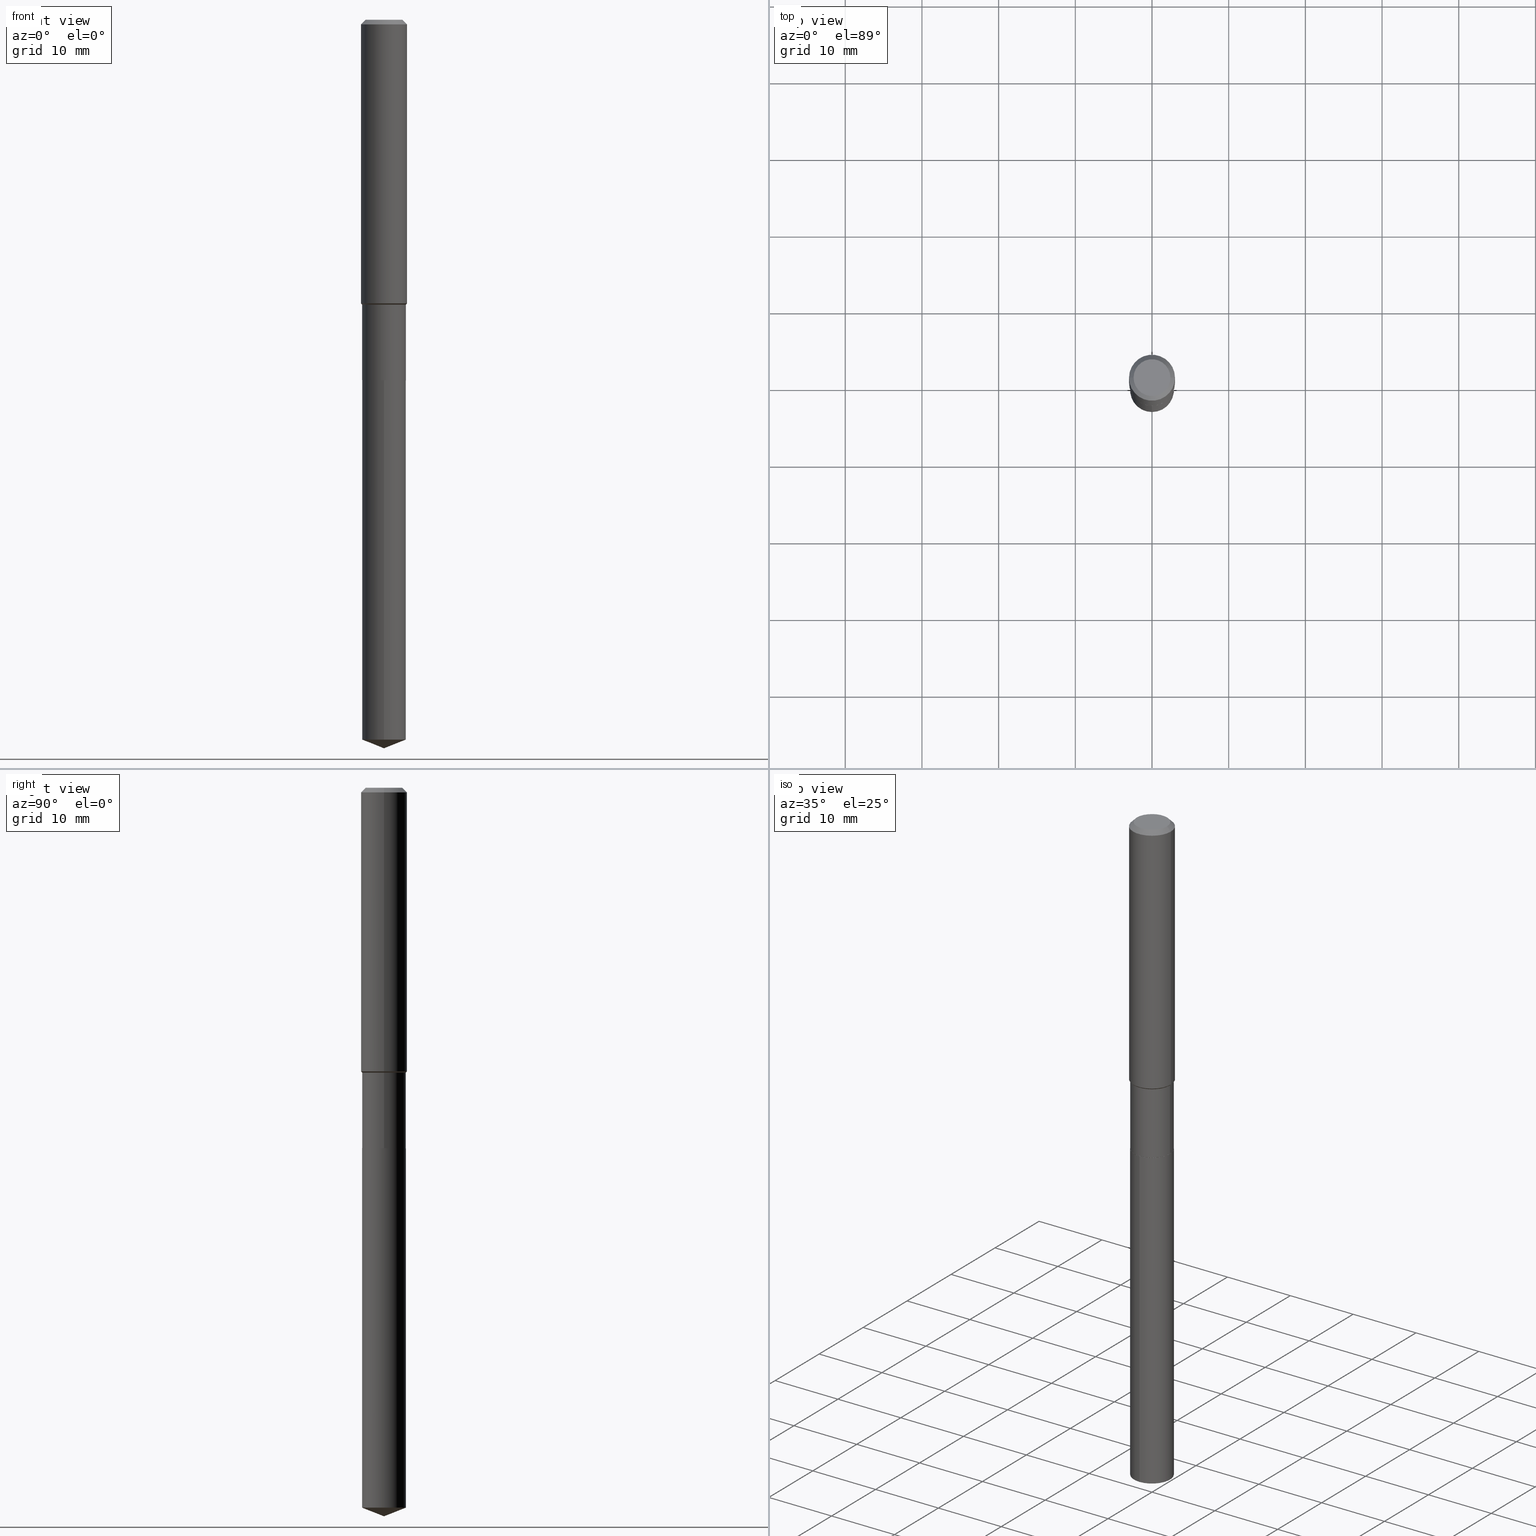
[diagram: canonical four-view strip — front | top / right | iso, engineering-drawing reading convention]
A machine part, canonical four-view strip (front | top / right | iso — engineering-drawing reading convention). The complete STEP part file that produces these views, byte-faithful:
ISO-10303-21;
HEADER;
FILE_DESCRIPTION (( 'STEP AP203' ),
    '1' );
FILE_NAME ('66633.STEP',
    '2024-04-25T02:29:24',
    ( '' ),
    ( '' ),
    'SwSTEP 2.0',
    'SolidWorks 2023',
    '' );
FILE_SCHEMA (( 'CONFIG_CONTROL_DESIGN' ));
ENDSEC;

DATA;
#1 = DIRECTION ( 'NONE',  ( -2.445468806185136597E-29, 3.491481338843145583E-15, 1.000000000000000000 ) ) ;
#2 = CARTESIAN_POINT ( 'NONE',  ( 4.525095478964977394E-29, -6.460637069395357576E-15, -1.850400000000000267 ) ) ;
#3 = EDGE_CURVE ( 'NONE', #206, #323, #258, .T. ) ;
#4 = VERTEX_POINT ( 'NONE', #250 ) ;
#5 = AXIS2_PLACEMENT_3D ( 'NONE', #226, #234, #44 ) ;
#6 = AXIS2_PLACEMENT_3D ( 'NONE', #460, #45, #273 ) ;
#7 = CARTESIAN_POINT ( 'NONE',  ( 3.576253582165144497E-29, -5.105942309924217164E-15, -1.462400000000000144 ) ) ;
#8 = ORIENTED_EDGE ( 'NONE', *, *, #195, .T. ) ;
#9 = DIRECTION ( 'NONE',  ( -2.445480539169629745E-29, 3.491464536541551464E-15, 1.000000000000000000 ) ) ;
#10 = DIRECTION ( 'NONE',  ( -1.000000000000000000, 6.982962677686266711E-15, 0.000000000000000000 ) ) ;
#11 = ORIENTED_EDGE ( 'NONE', *, *, #221, .T. ) ;
#12 = CIRCLE ( 'NONE', #303, 0.09447999999999998066 ) ;
#13 = CC_DESIGN_APPROVAL ( #188, ( #345 ) ) ;
#14 = CC_DESIGN_PERSON_AND_ORGANIZATION_ASSIGNMENT ( #249, #402, ( #345 ) ) ;
#15 = DIRECTION ( 'NONE',  ( -2.445468806185136597E-29, 3.491481338843145583E-15, 1.000000000000000000 ) ) ;
#16 = ORIENTED_EDGE ( 'NONE', *, *, #324, .F. ) ;
#17 = CARTESIAN_POINT ( 'NONE',  ( 9.146542891173238393E-29, -1.305883784153045268E-14, -3.740200000000000191 ) ) ;
#18 = ADVANCED_FACE ( 'NONE', ( #373 ), #50, .T. ) ;
#19 = EDGE_LOOP ( 'NONE', ( #38, #200 ) ) ;
#20 = DIRECTION ( 'NONE',  ( 2.445468806185136597E-29, -3.491481338843145583E-15, -1.000000000000000000 ) ) ;
#21 = EDGE_LOOP ( 'NONE', ( #321, #8, #128, #427 ) ) ;
#22 = CONICAL_SURFACE ( 'NONE', #296, 0.1121999999999999525, 0.7853981633974613796 ) ;
#23 = PERSON_AND_ORGANIZATION ( #166, #59 ) ;
#24 = EDGE_LOOP ( 'NONE', ( #361, #204, #46 ) ) ;
#25 = PRODUCT ( '66633', '66633', '', ( #66 ) ) ;
#26 = FACE_OUTER_BOUND ( 'NONE', #430, .T. ) ;
#27 = APPROVAL_ROLE ( '' ) ;
#28 = PLANE ( 'NONE',  #424 ) ;
#29 = DATE_AND_TIME ( #60, #162 ) ;
#30 = VECTOR ( 'NONE', #452, 39.37007874015748143 ) ;
#31 = AXIS2_PLACEMENT_3D ( 'NONE', #358, #52, #57 ) ;
#32 = LINE ( 'NONE', #374, #233 ) ;
#33 =( NAMED_UNIT ( * ) SI_UNIT ( $, .STERADIAN. ) SOLID_ANGLE_UNIT ( ) );
#34 = CARTESIAN_POINT ( 'NONE',  ( 3.576253582165144497E-29, -5.105942309924217164E-15, -1.462400000000000144 ) ) ;
#35 = CARTESIAN_POINT ( 'NONE',  ( 3.576253582165144497E-29, -5.105942309924217164E-15, -1.462400000000000144 ) ) ;
#36 = DIRECTION ( 'NONE',  ( -0.7071067811865459074, 2.468850131082240100E-15, -0.7071067811865491270 ) ) ;
#37 =( GEOMETRIC_REPRESENTATION_CONTEXT ( 3 ) GLOBAL_UNCERTAINTY_ASSIGNED_CONTEXT ( ( #297 ) ) GLOBAL_UNIT_ASSIGNED_CONTEXT ( ( #238, #218, #33 ) ) REPRESENTATION_CONTEXT ( 'NONE', 'WORKASPACE' ) );
#38 = ORIENTED_EDGE ( 'NONE', *, *, #366, .T. ) ;
#39 = CYLINDRICAL_SURFACE ( 'NONE', #91, 0.1122000000000000081 ) ;
#40 = CARTESIAN_POINT ( 'NONE',  ( 0.1180999999999999966, -9.071566814582237199E-16, -0.02362000000000014088 ) ) ;
#41 = ORIENTED_EDGE ( 'NONE', *, *, #213, .F. ) ;
#42 = DIRECTION ( 'NONE',  ( -2.445480539169629745E-29, 3.491464536541551464E-15, 1.000000000000000000 ) ) ;
#43 = VECTOR ( 'NONE', #114, 39.37007874015748143 ) ;
#44 = DIRECTION ( 'NONE',  ( 1.000000000000000000, -6.982962677686266711E-15, 0.000000000000000000 ) ) ;
#45 = DIRECTION ( 'NONE',  ( -2.445468806185136597E-29, 3.491481338843145583E-15, 1.000000000000000000 ) ) ;
#46 = ORIENTED_EDGE ( 'NONE', *, *, #136, .F. ) ;
#47 = CC_DESIGN_DATE_AND_TIME_ASSIGNMENT ( #62, #141, ( #230 ) ) ;
#48 = LINE ( 'NONE', #17, #320 ) ;
#49 = ORIENTED_EDGE ( 'NONE', *, *, #227, .F. ) ;
#50 = CONICAL_SURFACE ( 'NONE', #129, 0.1121999999999999525, 0.7853981633974613796 ) ;
#51 = EDGE_CURVE ( 'NONE', #124, #132, #293, .T. ) ;
#52 = DIRECTION ( 'NONE',  ( -2.438088387897960049E-29, 3.491481338843145188E-15, 1.000000000000000000 ) ) ;
#53 = ORIENTED_EDGE ( 'NONE', *, *, #133, .T. ) ;
#54 = EDGE_CURVE ( 'NONE', #90, #280, #32, .T. ) ;
#55 = CARTESIAN_POINT ( 'NONE',  ( 4.523872744561885153E-29, -6.458891328725936072E-15, -1.849900000000000322 ) ) ;
#56 = ORIENTED_EDGE ( 'NONE', *, *, #340, .T. ) ;
#57 = DIRECTION ( 'NONE',  ( 1.000000000000000000, -6.982962677686265922E-15, 4.876176775795935793E-29 ) ) ;
#58 = ORIENTED_EDGE ( 'NONE', *, *, #324, .T. ) ;
#59 = ORGANIZATION ( 'UNSPECIFIED', 'UNSPECIFIED', '' ) ;
#60 = CALENDAR_DATE ( 2024, 24, 4 ) ;
#61 = DIRECTION ( 'NONE',  ( -2.445468806185136597E-29, 3.491481338843145583E-15, 1.000000000000000000 ) ) ;
#62 = DATE_AND_TIME ( #474, #487 ) ;
#63 = CARTESIAN_POINT ( 'NONE',  ( 4.525095478964977954E-29, -6.460637069395358365E-15, -1.850400000000000489 ) ) ;
#64 = PERSON_AND_ORGANIZATION_ROLE ( 'design_supplier' ) ;
#65 = CARTESIAN_POINT ( 'NONE',  ( 2.358133508849003952E-46, -3.366789680499277518E-32, -9.642868896486260050E-18 ) ) ;
#66 = MECHANICAL_CONTEXT ( 'NONE', #327, 'mechanical' ) ;
#67 = AXIS2_PLACEMENT_3D ( 'NONE', #410, #183, #447 ) ;
#68 = CIRCLE ( 'NONE', #6, 0.1116999999999999937 ) ;
#69 = DIRECTION ( 'NONE',  ( -2.445468806185136597E-29, 3.491481338843145583E-15, 1.000000000000000000 ) ) ;
#70 = CARTESIAN_POINT ( 'NONE',  ( -7.834884124363086789E-16, -0.1122000000000129144, -3.696003244636003160 ) ) ;
#71 = FACE_OUTER_BOUND ( 'NONE', #275, .T. ) ;
#72 = ORIENTED_EDGE ( 'NONE', *, *, #284, .F. ) ;
#73 = EDGE_CURVE ( 'NONE', #323, #401, #443, .T. ) ;
#74 = DIRECTION ( 'NONE',  ( 1.000000000000000000, -6.982962677686270655E-15, 0.000000000000000000 ) ) ;
#75 = CONICAL_SURFACE ( 'NONE', #469, 0.1116999999999999937, 0.7853981633972775267 ) ;
#76 = AXIS2_PLACEMENT_3D ( 'NONE', #127, #464, #241 ) ;
#77 = ORIENTED_EDGE ( 'NONE', *, *, #133, .F. ) ;
#78 = DIRECTION ( 'NONE',  ( -6.982962677686265133E-15, -1.000000000000000000, 2.434802133390608632E-15 ) ) ;
#79 = ORIENTED_EDGE ( 'NONE', *, *, #335, .F. ) ;
#80 = DIRECTION ( 'NONE',  ( -2.445468806185136877E-29, 3.491481338843145188E-15, 1.000000000000000000 ) ) ;
#81 = ADVANCED_FACE ( 'NONE', ( #210 ), #28, .F. ) ;
#82 = CARTESIAN_POINT ( 'NONE',  ( 0.1181000000000000799, -8.246878922347486570E-16, 5.758764772215004644E-30 ) ) ;
#83 = CONICAL_SURFACE ( 'NONE', #352, 0.1116999999999999937, 0.7853981633972775267 ) ;
#84 = CIRCLE ( 'NONE', #130, 0.1180999999999999966 ) ;
#85 = ADVANCED_FACE ( 'NONE', ( #182 ), #139, .T. ) ;
#86 = ORIENTED_EDGE ( 'NONE', *, *, #428, .T. ) ;
#87 = LENGTH_MEASURE_WITH_UNIT ( LENGTH_MEASURE( 0.02539999999999999897 ), #123 );
#88 = ORIENTED_EDGE ( 'NONE', *, *, #136, .T. ) ;
#89 = CARTESIAN_POINT ( 'NONE',  ( 5.776197320209327532E-31, -8.246878922347559293E-17, -0.02362000000000014088 ) ) ;
#90 = VERTEX_POINT ( 'NONE', #70 ) ;
#91 = AXIS2_PLACEMENT_3D ( 'NONE', #2, #191, #78 ) ;
#92 = PRODUCT_DEFINITION_FORMATION_WITH_SPECIFIED_SOURCE ( 'ANY', '', #25, .NOT_KNOWN. ) ;
#93 = FACE_OUTER_BOUND ( 'NONE', #24, .T. ) ;
#94 = ORIENTED_EDGE ( 'NONE', *, *, #184, .F. ) ;
#95 = DIRECTION ( 'NONE',  ( -0.7071067811864267805, 7.493145998869918709E-15, 0.7071067811866682540 ) ) ;
#96 = ORIENTED_EDGE ( 'NONE', *, *, #54, .T. ) ;
#97 = APPROVAL_DATE_TIME ( #437, #174 ) ;
#98 = ADVANCED_FACE ( 'NONE', ( #112 ), #22, .T. ) ;
#99 = DIRECTION ( 'NONE',  ( 1.000000000000000000, -6.982962677686270655E-15, 0.000000000000000000 ) ) ;
#100 = MANIFOLD_SOLID_BREP ( 'Body-Move/Copy2[1]', #468 ) ;
#101 = LOCAL_TIME ( 22, 29, 24.00000000000000000, #257 ) ;
#102 = DATE_TIME_ROLE ( 'classification_date' ) ;
#103 = DIRECTION ( 'NONE',  ( -2.445468806185136877E-29, 3.491481338843145188E-15, 1.000000000000000000 ) ) ;
#104 = EDGE_CURVE ( 'NONE', #323, #426, #199, .T. ) ;
#105 = DIRECTION ( 'NONE',  ( -6.982962677686265133E-15, -1.000000000000000000, 4.869604266781217263E-15 ) ) ;
#106 = APPROVAL_DATE_TIME ( #144, #240 ) ;
#107 = DIRECTION ( 'NONE',  ( -0.7071067811865567876, 7.493145998870387292E-15, 0.7071067811865382469 ) ) ;
#108 = CLOSED_SHELL ( 'NONE', ( #143, #422, #190, #18, #488, #409, #98, #163, #85, #81, #371, #281 ) ) ;
#109 = CC_DESIGN_PERSON_AND_ORGANIZATION_ASSIGNMENT ( #369, #413, ( #25 ) ) ;
#110 = DIRECTION ( 'NONE',  ( 0.000000000000000000, 0.000000000000000000, 1.000000000000000000 ) ) ;
#111 = AXIS2_PLACEMENT_3D ( 'NONE', #322, #110, #209 ) ;
#112 = FACE_OUTER_BOUND ( 'NONE', #159, .T. ) ;
#113 = PLANE ( 'NONE',  #455 ) ;
#114 = DIRECTION ( 'NONE',  ( 0.7071067811865459074, -7.319954787623249734E-15, -0.7071067811865491270 ) ) ;
#115 = ORIENTED_EDGE ( 'NONE', *, *, #195, .F. ) ;
#116 = DIRECTION ( 'NONE',  ( 1.000000000000000000, -6.982962677686266711E-15, 4.876176775795936353E-29 ) ) ;
#117 = CARTESIAN_POINT ( 'NONE',  ( -8.713219678274335127E-28, 1.244004269715567405E-13, 35.62987874015747991 ) ) ;
#118 = DIRECTION ( 'NONE',  ( -2.445468806185136597E-29, 3.491481338843145583E-15, 1.000000000000000000 ) ) ;
#119 = DIRECTION ( 'NONE',  ( -2.445468806185136597E-29, 3.491481338843145583E-15, 1.000000000000000000 ) ) ;
#120 = AXIS2_PLACEMENT_3D ( 'NONE', #368, #408, #138 ) ;
#121 = ORIENTED_EDGE ( 'NONE', *, *, #458, .T. ) ;
#122 = AXIS2_PLACEMENT_3D ( 'NONE', #317, #119, #425 ) ;
#123 =( LENGTH_UNIT ( ) NAMED_UNIT ( * ) SI_UNIT ( $, .METRE. ) );
#124 = VERTEX_POINT ( 'NONE', #476 ) ;
#125 = DIRECTION ( 'NONE',  ( -2.445468806185136597E-29, 3.491481338843145583E-15, 1.000000000000000000 ) ) ;
#126 = VERTEX_POINT ( 'NONE', #180 ) ;
#127 = CARTESIAN_POINT ( 'NONE',  ( 4.716267017698007905E-46, -6.733579360998555036E-32, -1.928573779297252010E-17 ) ) ;
#128 = ORIENTED_EDGE ( 'NONE', *, *, #221, .F. ) ;
#129 = AXIS2_PLACEMENT_3D ( 'NONE', #35, #295, #212 ) ;
#130 = AXIS2_PLACEMENT_3D ( 'NONE', #89, #170, #391 ) ;
#131 = CARTESIAN_POINT ( 'NONE',  ( 0.1121999999999999525, -5.889430722360616365E-15, -1.462400000000000144 ) ) ;
#132 = VERTEX_POINT ( 'NONE', #336 ) ;
#133 = EDGE_CURVE ( 'NONE', #90, #124, #207, .T. ) ;
#134 = COORDINATED_UNIVERSAL_TIME_OFFSET ( 5, 0, .BEHIND. ) ;
#135 = DIRECTION ( 'NONE',  ( 2.438088387897960049E-29, -3.491481338843145188E-15, -1.000000000000000000 ) ) ;
#136 = EDGE_CURVE ( 'NONE', #124, #90, #154, .T. ) ;
#137 = SECURITY_CLASSIFICATION_LEVEL ( 'unclassified' ) ;
#138 = DIRECTION ( 'NONE',  ( 1.000000000000000000, -6.982962677686262766E-15, 0.000000000000000000 ) ) ;
#139 = CONICAL_SURFACE ( 'NONE', #67, 0.1180999999999999966, 0.7853981633974460586 ) ;
#140 = AXIS2_PLACEMENT_3D ( 'NONE', #282, #15, #466 ) ;
#141 = DATE_TIME_ROLE ( 'creation_date' ) ;
#142 = CARTESIAN_POINT ( 'NONE',  ( 7.972289495228775295E-16, 0.1121999999999935410, -1.850400000000000489 ) ) ;
#143 = ADVANCED_FACE ( 'NONE', ( #26 ), #83, .T. ) ;
#144 = DATE_AND_TIME ( #444, #101 ) ;
#145 = DIRECTION ( 'NONE',  ( -2.445468806185136597E-29, 3.491481338843145583E-15, 1.000000000000000000 ) ) ;
#146 = EDGE_CURVE ( 'NONE', #187, #4, #411, .T. ) ;
#147 = DIRECTION ( 'NONE',  ( -2.445468806185136597E-29, 3.491481338843145583E-15, 1.000000000000000000 ) ) ;
#148 = VECTOR ( 'NONE', #103, 39.37007874015748143 ) ;
#149 = CARTESIAN_POINT ( 'NONE',  ( 0.1121999999999999664, -7.834884124363989048E-16, 5.471070342443038844E-30 ) ) ;
#150 = CARTESIAN_POINT ( 'NONE',  ( 0.1116999999999999937, -7.240634000492913769E-15, -1.850400000000000489 ) ) ;
#151 = DIMENSIONAL_EXPONENTS ( 1.000000000000000000, 0.000000000000000000, 0.000000000000000000, 0.000000000000000000, 0.000000000000000000, 0.000000000000000000, 0.000000000000000000 ) ;
#152 = CARTESIAN_POINT ( 'NONE',  ( -0.1180999999999999966, 7.422191030112725094E-16, -0.02362000000000014088 ) ) ;
#153 = FACE_OUTER_BOUND ( 'NONE', #239, .T. ) ;
#154 = CIRCLE ( 'NONE', #461, 0.1122000000000000081 ) ;
#155 = EDGE_LOOP ( 'NONE', ( #472, #121, #77 ) ) ;
#156 = CARTESIAN_POINT ( 'NONE',  ( 4.716267017698007905E-46, -6.733579360998555036E-32, -1.928573779297252010E-17 ) ) ;
#157 = VERTEX_POINT ( 'NONE', #326 ) ;
#158 = DIRECTION ( 'NONE',  ( 1.000000000000000000, -6.982962677686270655E-15, 0.000000000000000000 ) ) ;
#159 = EDGE_LOOP ( 'NONE', ( #351, #58, #173, #161 ) ) ;
#160 = CARTESIAN_POINT ( 'NONE',  ( -0.1116999999999999937, -5.666960833551326304E-15, -1.850400000000000489 ) ) ;
#161 = ORIENTED_EDGE ( 'NONE', *, *, #104, .F. ) ;
#162 = LOCAL_TIME ( 22, 29, 24.00000000000000000, #214 ) ;
#163 = ADVANCED_FACE ( 'NONE', ( #405 ), #288, .T. ) ;
#164 = PLANE ( 'NONE',  #31 ) ;
#165 = ORIENTED_EDGE ( 'NONE', *, *, #184, .T. ) ;
#166 = PERSON ( 'UNSPECIFIED', 'UNSPECIFIED', 'UNSPECIFIED', ('UNSPECIFIED'), ('UNSPECIFIED'), ('UNSPECIFIED') ) ;
#167 = CARTESIAN_POINT ( 'NONE',  ( 3.561825316208651906E-29, -5.085342570025042633E-15, -1.456500000000000128 ) ) ;
#168 = ORIENTED_EDGE ( 'NONE', *, *, #335, .T. ) ;
#169 = DESIGN_CONTEXT ( 'detailed design', #259, 'design' ) ;
#170 = DIRECTION ( 'NONE',  ( -2.445468806185136597E-29, 3.491481338843145583E-15, 1.000000000000000000 ) ) ;
#171 = ORIENTED_EDGE ( 'NONE', *, *, #349, .T. ) ;
#172 = CIRCLE ( 'NONE', #291, 0.1122000000000000081 ) ;
#173 = ORIENTED_EDGE ( 'NONE', *, *, #454, .T. ) ;
#174 = APPROVAL ( #439, 'UNSPECIFIED' ) ;
#175 = CARTESIAN_POINT ( 'NONE',  ( -0.1121999999999999525, -4.308713360401384994E-15, -1.462400000000000144 ) ) ;
#176 = DATE_AND_TIME ( #211, #386 ) ;
#177 = DIRECTION ( 'NONE',  ( 1.000000000000000000, -6.982962677686270655E-15, 0.000000000000000000 ) ) ;
#178 = CIRCLE ( 'NONE', #5, 0.1180999999999999966 ) ;
#179 = CIRCLE ( 'NONE', #76, 0.09447999999999998066 ) ;
#180 = CARTESIAN_POINT ( 'NONE',  ( -0.09447999999999998066, 7.009847083995354710E-16, -1.928573779297727792E-17 ) ) ;
#181 = APPLICATION_PROTOCOL_DEFINITION ( 'international standard', 'config_control_design', 1994, #259 ) ;
#182 = FACE_OUTER_BOUND ( 'NONE', #396, .T. ) ;
#183 = DIRECTION ( 'NONE',  ( 2.445468806185136597E-29, -3.491481338843145583E-15, -1.000000000000000000 ) ) ;
#184 = EDGE_CURVE ( 'NONE', #359, #316, #337, .T. ) ;
#185 = CIRCLE ( 'NONE', #354, 0.1181000000000001632 ) ;
#186 = DIRECTION ( 'NONE',  ( 6.982962677686265922E-15, 1.000000000000000000, -3.491464536541551464E-15 ) ) ;
#187 = VERTEX_POINT ( 'NONE', #289 ) ;
#188 = APPROVAL ( #481, 'UNSPECIFIED' ) ;
#189 = LINE ( 'NONE', #338, #30 ) ;
#190 = ADVANCED_FACE ( 'NONE', ( #215 ), #332, .T. ) ;
#191 = DIRECTION ( 'NONE',  ( -2.445480539169629745E-29, 3.491464536541551464E-15, 1.000000000000000000 ) ) ;
#192 = EDGE_LOOP ( 'NONE', ( #306, #475, #41, #72 ) ) ;
#193 = AXIS2_PLACEMENT_3D ( 'NONE', #329, #69, #99 ) ;
#194 = DIRECTION ( 'NONE',  ( -2.445480539169629745E-29, 3.491464536541551464E-15, 1.000000000000000000 ) ) ;
#195 = EDGE_CURVE ( 'NONE', #187, #206, #189, .T. ) ;
#196 = CARTESIAN_POINT ( 'NONE',  ( -0.1181000000000001632, -4.246191599092362858E-15, -1.456500000000000128 ) ) ;
#197 = ORIENTED_EDGE ( 'NONE', *, *, #436, .T. ) ;
#198 = EDGE_LOOP ( 'NONE', ( #115, #248, #56, #16 ) ) ;
#199 = CIRCLE ( 'NONE', #193, 0.1181000000000001632 ) ;
#200 = ORIENTED_EDGE ( 'NONE', *, *, #227, .T. ) ;
#201 = FACE_OUTER_BOUND ( 'NONE', #243, .T. ) ;
#202 = ORIENTED_EDGE ( 'NONE', *, *, #366, .F. ) ;
#203 = FACE_OUTER_BOUND ( 'NONE', #392, .T. ) ;
#204 = ORIENTED_EDGE ( 'NONE', *, *, #473, .T. ) ;
#205 = APPROVAL_ROLE ( '' ) ;
#206 = VERTEX_POINT ( 'NONE', #459 ) ;
#207 = CIRCLE ( 'NONE', #272, 0.1122000000000000081 ) ;
#208 = VECTOR ( 'NONE', #95, 39.37007874015748143 ) ;
#209 = DIRECTION ( 'NONE',  ( 1.000000000000000000, 0.000000000000000000, 0.000000000000000000 ) ) ;
#210 = FACE_OUTER_BOUND ( 'NONE', #232, .T. ) ;
#211 = CALENDAR_DATE ( 2024, 24, 4 ) ;
#212 = DIRECTION ( 'NONE',  ( 1.000000000000000000, -6.982962677686270655E-15, 0.000000000000000000 ) ) ;
#213 = EDGE_CURVE ( 'NONE', #283, #401, #178, .T. ) ;
#214 = COORDINATED_UNIVERSAL_TIME_OFFSET ( 5, 0, .BEHIND. ) ;
#215 = FACE_OUTER_BOUND ( 'NONE', #192, .T. ) ;
#216 = CIRCLE ( 'NONE', #260, 0.1121999999999999525 ) ;
#217 = VECTOR ( 'NONE', #235, 39.37007874015748143 ) ;
#218 =( NAMED_UNIT ( * ) PLANE_ANGLE_UNIT ( ) SI_UNIT ( $, .RADIAN. ) );
#219 = CARTESIAN_POINT ( 'NONE',  ( 9.038482296750647899E-29, -1.290449534656798549E-14, -3.696003244636003604 ) ) ;
#220 = DIRECTION ( 'NONE',  ( -2.445480539169629745E-29, 3.491464536541551464E-15, 1.000000000000000000 ) ) ;
#221 = EDGE_CURVE ( 'NONE', #157, #206, #311, .T. ) ;
#222 = DIRECTION ( 'NONE',  ( -2.445468806185136597E-29, 3.491481338843145583E-15, 1.000000000000000000 ) ) ;
#223 = EDGE_LOOP ( 'NONE', ( #11, #390, #318, #365 ) ) ;
#224 = CONICAL_SURFACE ( 'NONE', #290, 99.94676754583875322, 1.195550537616115294 ) ;
#225 = APPROVAL_PERSON_ORGANIZATION ( #331, #188, #27 ) ;
#226 = CARTESIAN_POINT ( 'NONE',  ( 5.776197320209327532E-31, -8.246878922347559293E-17, -0.02362000000000014088 ) ) ;
#227 = EDGE_CURVE ( 'NONE', #132, #280, #440, .T. ) ;
#228 = FACE_OUTER_BOUND ( 'NONE', #453, .T. ) ;
#229 = VERTEX_POINT ( 'NONE', #305 ) ;
#230 = PRODUCT_DEFINITION ( 'UNKNOWN', '', #92, #169 ) ;
#231 = FACE_OUTER_BOUND ( 'NONE', #155, .T. ) ;
#232 = EDGE_LOOP ( 'NONE', ( #339, #197 ) ) ;
#233 = VECTOR ( 'NONE', #438, 39.37007874015748143 ) ;
#234 = DIRECTION ( 'NONE',  ( -2.445468806185136597E-29, 3.491481338843145583E-15, 1.000000000000000000 ) ) ;
#235 = DIRECTION ( 'NONE',  ( 0.7071067811864267805, -2.468850131080992517E-15, 0.7071067811866682540 ) ) ;
#236 = ORIENTED_EDGE ( 'NONE', *, *, #428, .F. ) ;
#237 = EDGE_CURVE ( 'NONE', #126, #451, #12, .T. ) ;
#238 =( CONVERSION_BASED_UNIT ( 'INCH', #87 ) LENGTH_UNIT ( ) NAMED_UNIT ( #151 ) );
#239 = EDGE_LOOP ( 'NONE', ( #398, #88, #96, #49 ) ) ;
#240 = APPROVAL ( #333, 'UNSPECIFIED' ) ;
#241 = DIRECTION ( 'NONE',  ( 1.000000000000000000, -6.982962677686267499E-15, 4.875432709231658792E-29 ) ) ;
#242 = AXIS2_PLACEMENT_3D ( 'NONE', #7, #1, #74 ) ;
#243 = EDGE_LOOP ( 'NONE', ( #465, #168, #343, #313 ) ) ;
#244 = CIRCLE ( 'NONE', #479, 0.1122000000000000081 ) ;
#245 = DIRECTION ( 'NONE',  ( 0.7071067811865567876, -2.468850131082353696E-15, 0.7071067811865382469 ) ) ;
#246 = ORIENTED_EDGE ( 'NONE', *, *, #388, .F. ) ;
#247 = DIRECTION ( 'NONE',  ( -2.445468806185136597E-29, 3.491481338843145583E-15, 1.000000000000000000 ) ) ;
#248 = ORIENTED_EDGE ( 'NONE', *, *, #146, .T. ) ;
#249 = PERSON_AND_ORGANIZATION ( #166, #59 ) ;
#250 = CARTESIAN_POINT ( 'NONE',  ( 0.1122000000000000081, -7.242379741162336062E-15, -1.849900000000000322 ) ) ;
#251 = CONICAL_SURFACE ( 'NONE', #470, 0.1180999999999999966, 0.7853981633974460586 ) ;
#252 = COORDINATED_UNIVERSAL_TIME_OFFSET ( 5, 0, .BEHIND. ) ;
#253 = DIRECTION ( 'NONE',  ( 1.000000000000000000, -6.982962677686262766E-15, 0.000000000000000000 ) ) ;
#254 = PRODUCT_RELATED_PRODUCT_CATEGORY ( 'detail', '', ( #25 ) ) ;
#255 = PERSON_AND_ORGANIZATION_ROLE ( 'creator' ) ;
#256 = DIRECTION ( 'NONE',  ( 1.000000000000000000, -6.982962677686266711E-15, 4.876176775795936353E-29 ) ) ;
#257 = COORDINATED_UNIVERSAL_TIME_OFFSET ( 5, 0, .BEHIND. ) ;
#258 = LINE ( 'NONE', #175, #363 ) ;
#259 = APPLICATION_CONTEXT ( 'configuration controlled 3d designs of mechanical parts and assemblies' ) ;
#260 = AXIS2_PLACEMENT_3D ( 'NONE', #485, #415, #270 ) ;
#261 = ADVANCED_FACE ( 'NONE', ( #231 ), #224, .T. ) ;
#262 = PERSON_AND_ORGANIZATION ( #166, #59 ) ;
#263 = DIRECTION ( 'NONE',  ( -6.982962677686265133E-15, -1.000000000000000000, 4.869604266781217263E-15 ) ) ;
#264 = MANIFOLD_SOLID_BREP ( 'Body-Move/Copy2[2]', #108 ) ;
#265 = ADVANCED_FACE ( 'NONE', ( #71 ), #39, .T. ) ;
#266 = CARTESIAN_POINT ( 'NONE',  ( -0.1116999999999999937, -5.664311606377215103E-15, -1.850400000000000489 ) ) ;
#267 = DIRECTION ( 'NONE',  ( 1.000000000000000000, -6.982962677686267499E-15, 4.875432709231658792E-29 ) ) ;
#268 = CC_DESIGN_APPROVAL ( #240, ( #230 ) ) ;
#269 = LINE ( 'NONE', #149, #385 ) ;
#270 = DIRECTION ( 'NONE',  ( 1.000000000000000000, -6.982962677686270655E-15, 0.000000000000000000 ) ) ;
#271 = DIRECTION ( 'NONE',  ( -6.982962677686265133E-15, -1.000000000000000000, 3.498627837350046821E-15 ) ) ;
#272 = AXIS2_PLACEMENT_3D ( 'NONE', #219, #220, #105 ) ;
#273 = DIRECTION ( 'NONE',  ( 1.000000000000000000, -6.982962677686262766E-15, 0.000000000000000000 ) ) ;
#274 = CONICAL_SURFACE ( 'NONE', #441, 99.94676754583875322, 1.195550537616115294 ) ;
#275 = EDGE_LOOP ( 'NONE', ( #53, #286, #202, #463 ) ) ;
#276 = CC_DESIGN_PERSON_AND_ORGANIZATION_ASSIGNMENT ( #372, #64, ( #92 ) ) ;
#277 = ORIENTED_EDGE ( 'NONE', *, *, #400, .T. ) ;
#278 = ADVANCED_BREP_SHAPE_REPRESENTATION ( '66633', ( #100, #264, #111 ), #37 ) ;
#279 = LINE ( 'NONE', #160, #208 ) ;
#280 = VERTEX_POINT ( 'NONE', #346 ) ;
#281 = ADVANCED_FACE ( 'NONE', ( #228 ), #75, .T. ) ;
#282 = CARTESIAN_POINT ( 'NONE',  ( 0.000000000000000000, 0.000000000000000000, 0.000000000000000000 ) ) ;
#283 = VERTEX_POINT ( 'NONE', #40 ) ;
#284 = EDGE_CURVE ( 'NONE', #426, #283, #423, .T. ) ;
#285 = LINE ( 'NONE', #319, #217 ) ;
#286 = ORIENTED_EDGE ( 'NONE', *, *, #51, .T. ) ;
#287 = CALENDAR_DATE ( 2024, 24, 4 ) ;
#288 = CYLINDRICAL_SURFACE ( 'NONE', #344, 0.1181000000000000799 ) ;
#289 = CARTESIAN_POINT ( 'NONE',  ( -0.1121999999999999803, -4.985187869802244054E-15, -1.849900000000000322 ) ) ;
#290 = AXIS2_PLACEMENT_3D ( 'NONE', #117, #194, #271 ) ;
#291 = AXIS2_PLACEMENT_3D ( 'NONE', #383, #302, #381 ) ;
#292 = SHAPE_DEFINITION_REPRESENTATION ( #356, #278 ) ;
#293 = LINE ( 'NONE', #142, #486 ) ;
#294 = DIRECTION ( 'NONE',  ( -2.445468806185136597E-29, 3.491481338843145583E-15, 1.000000000000000000 ) ) ;
#295 = DIRECTION ( 'NONE',  ( -2.445468806185136597E-29, 3.491481338843145583E-15, 1.000000000000000000 ) ) ;
#296 = AXIS2_PLACEMENT_3D ( 'NONE', #34, #294, #177 ) ;
#297 = UNCERTAINTY_MEASURE_WITH_UNIT (LENGTH_MEASURE( 1.000000000000000082E-05 ), #238, 'distance_accuracy_value', 'NONE');
#298 = CC_DESIGN_PERSON_AND_ORGANIZATION_ASSIGNMENT ( #23, #255, ( #230 ) ) ;
#299 = LINE ( 'NONE', #152, #478 ) ;
#300 = CYLINDRICAL_SURFACE ( 'NONE', #393, 0.1122000000000000081 ) ;
#301 = ORIENTED_EDGE ( 'NONE', *, *, #400, .F. ) ;
#302 = DIRECTION ( 'NONE',  ( -2.445480539169629745E-29, 3.491464536541551464E-15, 1.000000000000000000 ) ) ;
#303 = AXIS2_PLACEMENT_3D ( 'NONE', #156, #118, #267 ) ;
#304 = VECTOR ( 'NONE', #434, 39.37007874015748143 ) ;
#305 = CARTESIAN_POINT ( 'NONE',  ( 9.146586312602250272E-29, -1.305877565957271148E-14, -3.740200000000000191 ) ) ;
#306 = ORIENTED_EDGE ( 'NONE', *, *, #484, .T. ) ;
#307 = DIRECTION ( 'NONE',  ( 1.000000000000000000, -6.982962677686262766E-15, 0.000000000000000000 ) ) ;
#308 = ORIENTED_EDGE ( 'NONE', *, *, #104, .T. ) ;
#309 = CYLINDRICAL_SURFACE ( 'NONE', #122, 0.1121999999999999664 ) ;
#310 = CC_DESIGN_DATE_AND_TIME_ASSIGNMENT ( #29, #102, ( #345 ) ) ;
#311 = CIRCLE ( 'NONE', #242, 0.1121999999999999525 ) ;
#312 = FACE_OUTER_BOUND ( 'NONE', #21, .T. ) ;
#313 = ORIENTED_EDGE ( 'NONE', *, *, #349, .F. ) ;
#314 = LINE ( 'NONE', #131, #364 ) ;
#315 = ADVANCED_FACE ( 'NONE', ( #153 ), #300, .T. ) ;
#316 = VERTEX_POINT ( 'NONE', #266 ) ;
#317 = CARTESIAN_POINT ( 'NONE',  ( 0.000000000000000000, 0.000000000000000000, 0.000000000000000000 ) ) ;
#318 = ORIENTED_EDGE ( 'NONE', *, *, #484, .F. ) ;
#319 = CARTESIAN_POINT ( 'NONE',  ( 0.1116999999999999937, -7.240634000492913769E-15, -1.850400000000000489 ) ) ;
#320 = VECTOR ( 'NONE', #350, 39.37007874015748854 ) ;
#321 = ORIENTED_EDGE ( 'NONE', *, *, #406, .T. ) ;
#322 = CARTESIAN_POINT ( 'NONE',  ( 0.000000000000000000, 0.000000000000000000, 0.000000000000000000 ) ) ;
#323 = VERTEX_POINT ( 'NONE', #196 ) ;
#324 = EDGE_CURVE ( 'NONE', #206, #157, #216, .T. ) ;
#325 = APPLICATION_PROTOCOL_DEFINITION ( 'international standard', 'config_control_design', 1994, #327 ) ;
#326 = CARTESIAN_POINT ( 'NONE',  ( 0.1121999999999999525, -5.889430722360616365E-15, -1.462400000000000144 ) ) ;
#327 = APPLICATION_CONTEXT ( 'configuration controlled 3d designs of mechanical parts and assemblies' ) ;
#328 = APPROVAL_DATE_TIME ( #176, #188 ) ;
#329 = CARTESIAN_POINT ( 'NONE',  ( 3.561825316208651906E-29, -5.085342570025042633E-15, -1.456500000000000128 ) ) ;
#330 = AXIS2_PLACEMENT_3D ( 'NONE', #483, #147, #414 ) ;
#331 = PERSON_AND_ORGANIZATION ( #166, #59 ) ;
#332 = CYLINDRICAL_SURFACE ( 'NONE', #431, 0.1181000000000000799 ) ;
#333 = APPROVAL_STATUS ( 'not_yet_approved' ) ;
#334 = DIRECTION ( 'NONE',  ( -2.445480539169630025E-29, 3.491464536541551464E-15, 1.000000000000000000 ) ) ;
#335 = EDGE_CURVE ( 'NONE', #451, #283, #450, .T. ) ;
#336 = CARTESIAN_POINT ( 'NONE',  ( 7.972289495229231848E-16, 0.1121999999999935688, -1.850400000000000489 ) ) ;
#337 = CIRCLE ( 'NONE', #120, 0.1116999999999999937 ) ;
#338 = CARTESIAN_POINT ( 'NONE',  ( -0.1121999999999999664, 7.972289495228321700E-16, -5.519045171266003019E-30 ) ) ;
#339 = ORIENTED_EDGE ( 'NONE', *, *, #237, .T. ) ;
#340 = EDGE_CURVE ( 'NONE', #4, #157, #269, .T. ) ;
#341 = CARTESIAN_POINT ( 'NONE',  ( 4.525095478964977954E-29, -6.460637069395358365E-15, -1.850400000000000489 ) ) ;
#342 = DIRECTION ( 'NONE',  ( -6.982962677686265133E-15, -1.000000000000000000, 2.434802133390608632E-15 ) ) ;
#343 = ORIENTED_EDGE ( 'NONE', *, *, #213, .T. ) ;
#344 = AXIS2_PLACEMENT_3D ( 'NONE', #403, #61, #256 ) ;
#345 = SECURITY_CLASSIFICATION ( '', '', #137 ) ;
#346 = CARTESIAN_POINT ( 'NONE',  ( -7.834884124363538412E-16, -0.1122000000000064612, -1.850400000000000045 ) ) ;
#347 = ORIENTED_EDGE ( 'NONE', *, *, #378, .F. ) ;
#348 = CARTESIAN_POINT ( 'NONE',  ( 0.1181000000000001632, -5.910030462259791685E-15, -1.456500000000000128 ) ) ;
#349 = EDGE_CURVE ( 'NONE', #126, #401, #299, .T. ) ;
#350 = DIRECTION ( 'NONE',  ( -6.497071151882109581E-15, -0.9304175679820231304, 0.3665012267243009658 ) ) ;
#351 = ORIENTED_EDGE ( 'NONE', *, *, #3, .F. ) ;
#352 = AXIS2_PLACEMENT_3D ( 'NONE', #63, #445, #253 ) ;
#353 = LINE ( 'NONE', #432, #304 ) ;
#354 = AXIS2_PLACEMENT_3D ( 'NONE', #167, #247, #158 ) ;
#355 = ORIENTED_EDGE ( 'NONE', *, *, #146, .F. ) ;
#356 = PRODUCT_DEFINITION_SHAPE ( 'NONE', 'NONE',  #230 ) ;
#357 = ADVANCED_FACE ( 'NONE', ( #448 ), #113, .F. ) ;
#358 = CARTESIAN_POINT ( 'NONE',  ( 1.364938197707930567E-29, -1.098616216113784255E-14, -1.850400000000000489 ) ) ;
#359 = VERTEX_POINT ( 'NONE', #150 ) ;
#360 = CYLINDRICAL_SURFACE ( 'NONE', #140, 0.1121999999999999664 ) ;
#361 = ORIENTED_EDGE ( 'NONE', *, *, #458, .F. ) ;
#362 = APPROVAL_ROLE ( '' ) ;
#363 = VECTOR ( 'NONE', #107, 39.37007874015748143 ) ;
#364 = VECTOR ( 'NONE', #245, 39.37007874015748143 ) ;
#365 = ORIENTED_EDGE ( 'NONE', *, *, #454, .F. ) ;
#366 = EDGE_CURVE ( 'NONE', #280, #132, #172, .T. ) ;
#367 = PERSON_AND_ORGANIZATION_ROLE ( 'creator' ) ;
#368 = CARTESIAN_POINT ( 'NONE',  ( 4.525095478964977954E-29, -6.460637069395358365E-15, -1.850400000000000489 ) ) ;
#369 = PERSON_AND_ORGANIZATION ( #166, #59 ) ;
#370 = CARTESIAN_POINT ( 'NONE',  ( -0.1181000000000000799, 8.391509709326788873E-16, -5.809262341591047988E-30 ) ) ;
#371 = ADVANCED_FACE ( 'NONE', ( #203 ), #164, .F. ) ;
#372 = PERSON_AND_ORGANIZATION ( #166, #59 ) ;
#373 = FACE_OUTER_BOUND ( 'NONE', #223, .T. ) ;
#374 = CARTESIAN_POINT ( 'NONE',  ( -7.834884124363538412E-16, -0.1122000000000064612, -1.850400000000000045 ) ) ;
#375 = DIRECTION ( 'NONE',  ( -1.000000000000000000, 6.982962677686265922E-15, -4.876176775795935793E-29 ) ) ;
#376 = DIRECTION ( 'NONE',  ( 2.445480539169629464E-29, -3.491464536541551464E-15, -1.000000000000000000 ) ) ;
#377 = AXIS2_PLACEMENT_3D ( 'NONE', #457, #42, #380 ) ;
#378 = EDGE_CURVE ( 'NONE', #359, #4, #285, .T. ) ;
#379 = CC_DESIGN_APPROVAL ( #174, ( #92 ) ) ;
#380 = DIRECTION ( 'NONE',  ( -6.982962677686265133E-15, -1.000000000000000000, 2.434802133390608632E-15 ) ) ;
#381 = DIRECTION ( 'NONE',  ( -6.982962677686265133E-15, -1.000000000000000000, 2.434802133390608632E-15 ) ) ;
#382 = ORIENTED_EDGE ( 'NONE', *, *, #388, .T. ) ;
#383 = CARTESIAN_POINT ( 'NONE',  ( 4.525095478964977394E-29, -6.460637069395357576E-15, -1.850400000000000267 ) ) ;
#384 = EDGE_LOOP ( 'NONE', ( #490, #308, #467, #301 ) ) ;
#385 = VECTOR ( 'NONE', #80, 39.37007874015748143 ) ;
#386 = LOCAL_TIME ( 22, 29, 24.00000000000000000, #252 ) ;
#387 = DIRECTION ( 'NONE',  ( -2.445480539169629745E-29, 3.491464536541551464E-15, 1.000000000000000000 ) ) ;
#388 = EDGE_CURVE ( 'NONE', #316, #187, #279, .T. ) ;
#389 = FACE_OUTER_BOUND ( 'NONE', #198, .T. ) ;
#390 = ORIENTED_EDGE ( 'NONE', *, *, #3, .T. ) ;
#391 = DIRECTION ( 'NONE',  ( 1.000000000000000000, -6.982962677686266711E-15, 0.000000000000000000 ) ) ;
#392 = EDGE_LOOP ( 'NONE', ( #94, #236 ) ) ;
#393 = AXIS2_PLACEMENT_3D ( 'NONE', #421, #387, #342 ) ;
#394 = DIRECTION ( 'NONE',  ( 1.000000000000000000, -6.982962677686266711E-15, 0.000000000000000000 ) ) ;
#395 = APPROVAL_PERSON_ORGANIZATION ( #477, #240, #362 ) ;
#396 = EDGE_LOOP ( 'NONE', ( #79, #433, #171, #277 ) ) ;
#397 = DIRECTION ( 'NONE',  ( -6.982962677686265133E-15, -1.000000000000000000, 3.498627837350046821E-15 ) ) ;
#398 = ORIENTED_EDGE ( 'NONE', *, *, #51, .F. ) ;
#399 = CARTESIAN_POINT ( 'NONE',  ( -0.1180999999999999966, -1.744754708691579468E-15, -0.02362000000000014088 ) ) ;
#400 = EDGE_CURVE ( 'NONE', #401, #283, #84, .T. ) ;
#401 = VERTEX_POINT ( 'NONE', #399 ) ;
#402 = PERSON_AND_ORGANIZATION_ROLE ( 'classification_officer' ) ;
#403 = CARTESIAN_POINT ( 'NONE',  ( 0.000000000000000000, 0.000000000000000000, 0.000000000000000000 ) ) ;
#404 = CC_DESIGN_PERSON_AND_ORGANIZATION_ASSIGNMENT ( #407, #367, ( #92 ) ) ;
#405 = FACE_OUTER_BOUND ( 'NONE', #384, .T. ) ;
#406 = EDGE_CURVE ( 'NONE', #4, #187, #244, .T. ) ;
#407 = PERSON_AND_ORGANIZATION ( #166, #59 ) ;
#408 = DIRECTION ( 'NONE',  ( -2.445468806185136597E-29, 3.491481338843145583E-15, 1.000000000000000000 ) ) ;
#409 = ADVANCED_FACE ( 'NONE', ( #389 ), #360, .T. ) ;
#410 = CARTESIAN_POINT ( 'NONE',  ( 5.776197320209327532E-31, -8.246878922347559293E-17, -0.02362000000000014088 ) ) ;
#411 = CIRCLE ( 'NONE', #330, 0.1122000000000000081 ) ;
#412 = LOCAL_TIME ( 22, 29, 24.00000000000000000, #134 ) ;
#413 = PERSON_AND_ORGANIZATION_ROLE ( 'design_owner' ) ;
#414 = DIRECTION ( 'NONE',  ( 1.000000000000000000, -6.982962677686266711E-15, 0.000000000000000000 ) ) ;
#415 = DIRECTION ( 'NONE',  ( -2.445468806185136597E-29, 3.491481338843145583E-15, 1.000000000000000000 ) ) ;
#416 = ORIENTED_EDGE ( 'NONE', *, *, #378, .T. ) ;
#417 = DIRECTION ( 'NONE',  ( -2.445468806185136877E-29, 3.491481338843145188E-15, 1.000000000000000000 ) ) ;
#418 = VECTOR ( 'NONE', #417, 39.37007874015748143 ) ;
#419 = CC_DESIGN_SECURITY_CLASSIFICATION ( #345, ( #92 ) ) ;
#420 = CARTESIAN_POINT ( 'NONE',  ( 0.1180999999999999966, -8.926936027602933910E-16, -0.02362000000000014088 ) ) ;
#421 = CARTESIAN_POINT ( 'NONE',  ( 4.525095478964977394E-29, -6.460637069395357576E-15, -1.850400000000000267 ) ) ;
#422 = ADVANCED_FACE ( 'NONE', ( #201 ), #251, .T. ) ;
#423 = LINE ( 'NONE', #82, #418 ) ;
#424 = AXIS2_PLACEMENT_3D ( 'NONE', #65, #135, #375 ) ;
#425 = DIRECTION ( 'NONE',  ( 1.000000000000000000, -6.982962677686266711E-15, 4.876176775795936353E-29 ) ) ;
#426 = VERTEX_POINT ( 'NONE', #348 ) ;
#427 = ORIENTED_EDGE ( 'NONE', *, *, #340, .F. ) ;
#428 = EDGE_CURVE ( 'NONE', #316, #359, #68, .T. ) ;
#429 = CARTESIAN_POINT ( 'NONE',  ( 5.776197320209327532E-31, -8.246878922347559293E-17, -0.02362000000000014088 ) ) ;
#430 = EDGE_LOOP ( 'NONE', ( #165, #382, #435, #347 ) ) ;
#431 = AXIS2_PLACEMENT_3D ( 'NONE', #482, #145, #116 ) ;
#432 = CARTESIAN_POINT ( 'NONE',  ( 9.146586693356927948E-29, -1.305877565957271148E-14, -3.740200000000000191 ) ) ;
#433 = ORIENTED_EDGE ( 'NONE', *, *, #237, .F. ) ;
#434 = DIRECTION ( 'NONE',  ( 6.611014441532056334E-15, 0.9304175679820255729, 0.3665012267242944155 ) ) ;
#435 = ORIENTED_EDGE ( 'NONE', *, *, #406, .F. ) ;
#436 = EDGE_CURVE ( 'NONE', #451, #126, #179, .T. ) ;
#437 = DATE_AND_TIME ( #287, #412 ) ;
#438 = DIRECTION ( 'NONE',  ( -2.445480539169630025E-29, 3.491464536541551464E-15, 1.000000000000000000 ) ) ;
#439 = APPROVAL_STATUS ( 'not_yet_approved' ) ;
#440 = CIRCLE ( 'NONE', #377, 0.1122000000000000081 ) ;
#441 = AXIS2_PLACEMENT_3D ( 'NONE', #471, #9, #397 ) ;
#442 = DIRECTION ( 'NONE',  ( -2.445480539169629745E-29, 3.491464536541551464E-15, 1.000000000000000000 ) ) ;
#443 = LINE ( 'NONE', #370, #148 ) ;
#444 = CALENDAR_DATE ( 2024, 24, 4 ) ;
#445 = DIRECTION ( 'NONE',  ( -2.445468806185136597E-29, 3.491481338843145583E-15, 1.000000000000000000 ) ) ;
#446 = COORDINATED_UNIVERSAL_TIME_OFFSET ( 5, 0, .BEHIND. ) ;
#447 = DIRECTION ( 'NONE',  ( -1.000000000000000000, 6.982962677686266711E-15, 0.000000000000000000 ) ) ;
#448 = FACE_OUTER_BOUND ( 'NONE', #19, .T. ) ;
#449 = ADVANCED_FACE ( 'NONE', ( #93 ), #274, .T. ) ;
#450 = LINE ( 'NONE', #420, #43 ) ;
#451 = VERTEX_POINT ( 'NONE', #462 ) ;
#452 = DIRECTION ( 'NONE',  ( -2.445468806185136877E-29, 3.491481338843145188E-15, 1.000000000000000000 ) ) ;
#453 = EDGE_LOOP ( 'NONE', ( #246, #86, #416, #355 ) ) ;
#454 = EDGE_CURVE ( 'NONE', #157, #426, #314, .T. ) ;
#455 = AXIS2_PLACEMENT_3D ( 'NONE', #489, #376, #186 ) ;
#456 = APPROVAL_PERSON_ORGANIZATION ( #262, #174, #205 ) ;
#457 = CARTESIAN_POINT ( 'NONE',  ( 4.525095478964977394E-29, -6.460637069395357576E-15, -1.850400000000000267 ) ) ;
#458 = EDGE_CURVE ( 'NONE', #229, #124, #353, .T. ) ;
#459 = CARTESIAN_POINT ( 'NONE',  ( -0.1121999999999999525, -4.985187869802244054E-15, -1.462400000000000144 ) ) ;
#460 = CARTESIAN_POINT ( 'NONE',  ( 4.525095478964977954E-29, -6.460637069395358365E-15, -1.850400000000000489 ) ) ;
#461 = AXIS2_PLACEMENT_3D ( 'NONE', #480, #442, #263 ) ;
#462 = CARTESIAN_POINT ( 'NONE',  ( 0.09447999999999998066, -7.704367267948738690E-16, -1.928573779296752193E-17 ) ) ;
#463 = ORIENTED_EDGE ( 'NONE', *, *, #54, .F. ) ;
#464 = DIRECTION ( 'NONE',  ( -2.445468806185136597E-29, 3.491481338843145583E-15, 1.000000000000000000 ) ) ;
#465 = ORIENTED_EDGE ( 'NONE', *, *, #436, .F. ) ;
#466 = DIRECTION ( 'NONE',  ( 1.000000000000000000, -6.982962677686266711E-15, 4.876176775795936353E-29 ) ) ;
#467 = ORIENTED_EDGE ( 'NONE', *, *, #284, .T. ) ;
#468 = CLOSED_SHELL ( 'NONE', ( #265, #261, #449, #315, #357 ) ) ;
#469 = AXIS2_PLACEMENT_3D ( 'NONE', #341, #222, #307 ) ;
#470 = AXIS2_PLACEMENT_3D ( 'NONE', #429, #20, #10 ) ;
#471 = CARTESIAN_POINT ( 'NONE',  ( -8.713219678274335127E-28, 1.244004269715567405E-13, 35.62987874015747991 ) ) ;
#472 = ORIENTED_EDGE ( 'NONE', *, *, #473, .F. ) ;
#473 = EDGE_CURVE ( 'NONE', #229, #90, #48, .T. ) ;
#474 = CALENDAR_DATE ( 2024, 24, 4 ) ;
#475 = ORIENTED_EDGE ( 'NONE', *, *, #73, .T. ) ;
#476 = CARTESIAN_POINT ( 'NONE',  ( 7.972289495229227904E-16, 0.1121999999999870878, -3.696003244636004048 ) ) ;
#477 = PERSON_AND_ORGANIZATION ( #166, #59 ) ;
#478 = VECTOR ( 'NONE', #36, 39.37007874015748143 ) ;
#479 = AXIS2_PLACEMENT_3D ( 'NONE', #55, #125, #394 ) ;
#480 = CARTESIAN_POINT ( 'NONE',  ( 9.038482296750647899E-29, -1.290449534656798549E-14, -3.696003244636003604 ) ) ;
#481 = APPROVAL_STATUS ( 'not_yet_approved' ) ;
#482 = CARTESIAN_POINT ( 'NONE',  ( 0.000000000000000000, 0.000000000000000000, 0.000000000000000000 ) ) ;
#483 = CARTESIAN_POINT ( 'NONE',  ( 4.523872744561885153E-29, -6.458891328725936072E-15, -1.849900000000000322 ) ) ;
#484 = EDGE_CURVE ( 'NONE', #426, #323, #185, .T. ) ;
#485 = CARTESIAN_POINT ( 'NONE',  ( 3.576253582165144497E-29, -5.105942309924217164E-15, -1.462400000000000144 ) ) ;
#486 = VECTOR ( 'NONE', #334, 39.37007874015748143 ) ;
#487 = LOCAL_TIME ( 22, 29, 24.00000000000000000, #446 ) ;
#488 = ADVANCED_FACE ( 'NONE', ( #312 ), #309, .T. ) ;
#489 = CARTESIAN_POINT ( 'NONE',  ( 4.525095478964977394E-29, -6.460637069395357576E-15, -1.850400000000000267 ) ) ;
#490 = ORIENTED_EDGE ( 'NONE', *, *, #73, .F. ) ;
ENDSEC;
END-ISO-10303-21;
